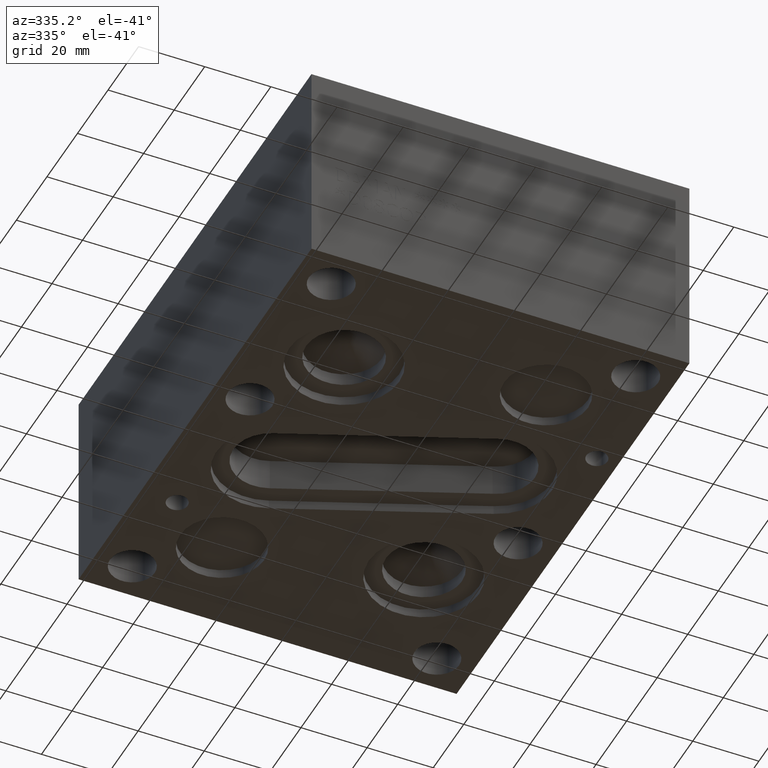
[diagram: clean part render]
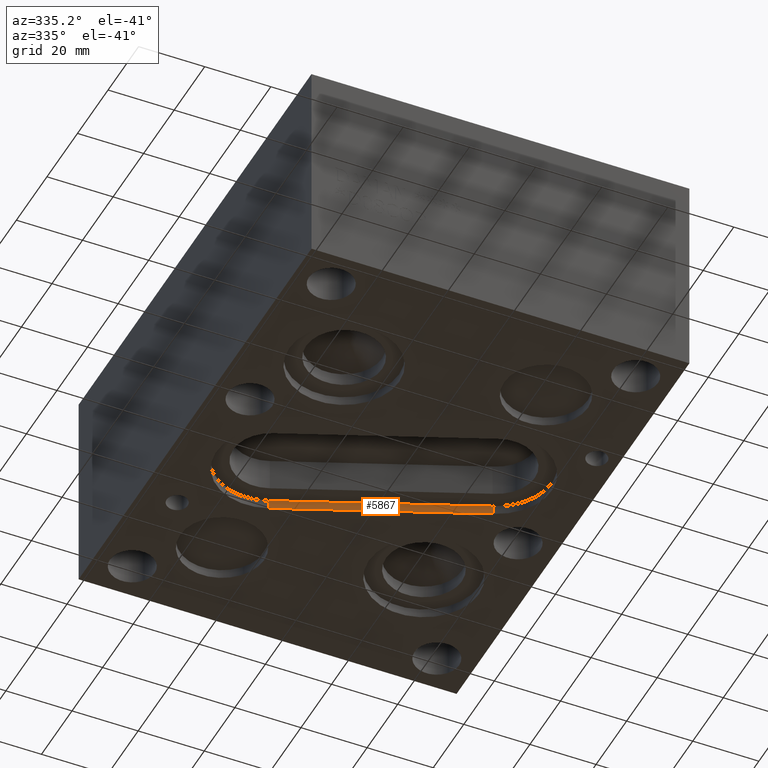
[diagram: same view with one face highlighted and labeled with its STEP entity id]
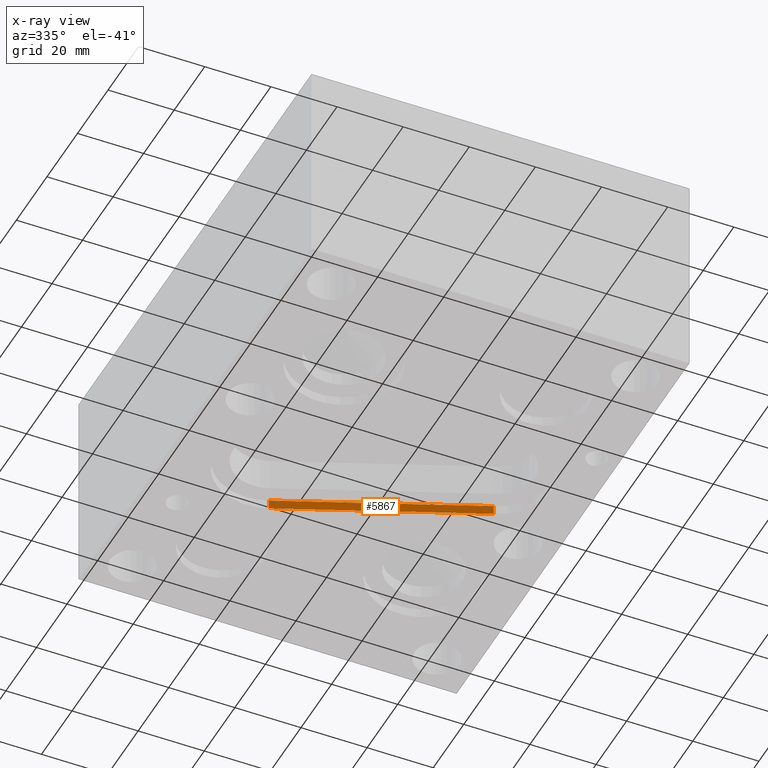
[diagram: x-ray of the same camera — body ghosted, the highlighted face saturated]
A machine part, auxiliary view. The second image highlights one B-rep face of the part: STEP entity #5867.
The next image is the same camera in x-ray: the body ghosted, the highlighted face saturated — about 0% of this face is hidden behind the body in this view.
In plain terms, the highlighted planar face has unit normal (0.3848, 0.923, 0).
Its self-contained STEP definition (entity closure, byte-faithful):
#684=FACE_OUTER_BOUND('',#994,.T.);
#994=EDGE_LOOP('',(#4007,#4008,#4009,#4010));
#1351=LINE('',#7682,#1965);
#1356=LINE('',#7698,#1970);
#1357=LINE('',#7699,#1971);
#1358=LINE('',#7700,#1972);
#1965=VECTOR('',#6493,10.);
#1970=VECTOR('',#6510,10.);
#1971=VECTOR('',#6511,10.);
#1972=VECTOR('',#6512,10.);
#2580=VERTEX_POINT('',#7679);
#2581=VERTEX_POINT('',#7681);
#2585=VERTEX_POINT('',#7696);
#2586=VERTEX_POINT('',#7697);
#3150=EDGE_CURVE('',#2581,#2580,#1351,.T.);
#3158=EDGE_CURVE('',#2585,#2586,#1356,.T.);
#3159=EDGE_CURVE('',#2581,#2585,#1357,.T.);
#3160=EDGE_CURVE('',#2586,#2580,#1358,.T.);
#4007=ORIENTED_EDGE('',*,*,#3158,.F.);
#4008=ORIENTED_EDGE('',*,*,#3159,.F.);
#4009=ORIENTED_EDGE('',*,*,#3150,.T.);
#4010=ORIENTED_EDGE('',*,*,#3160,.F.);
#5663=PLANE('',#6196);
#5867=ADVANCED_FACE('',(#684),#5663,.F.);
#6196=AXIS2_PLACEMENT_3D('',#7695,#6508,#6509);
#6493=DIRECTION('',(-0.922991867569309,0.384819454291125,0.));
#6508=DIRECTION('center_axis',(0.384819454291125,0.922991867569309,0.));
#6509=DIRECTION('ref_axis',(-0.922991867569309,0.384819454291125,0.));
#6510=DIRECTION('',(-0.922991867569309,0.384819454291125,0.));
#6511=DIRECTION('',(0.,0.,-1.));
#6512=DIRECTION('',(0.,0.,1.));
#7679=CARTESIAN_POINT('',(34.9919028822499,103.503581690905,2.794));
#7681=CARTESIAN_POINT('',(91.9048142544201,79.7751001453045,2.794));
#7682=CARTESIAN_POINT('',(34.9919028822499,103.503581690905,2.794));
#7695=CARTESIAN_POINT('Origin',(91.90481425442,79.7751001453045,0.));
#7696=CARTESIAN_POINT('',(91.9048142544201,79.7751001453045,0.));
#7697=CARTESIAN_POINT('',(34.9919028822499,103.503581690905,0.));
#7698=CARTESIAN_POINT('',(77.735669432505,85.6825872746338,0.));
#7699=CARTESIAN_POINT('',(91.9048142544195,79.7751001453048,1.397));
#7700=CARTESIAN_POINT('',(34.9919028822499,103.503581690905,1.397));